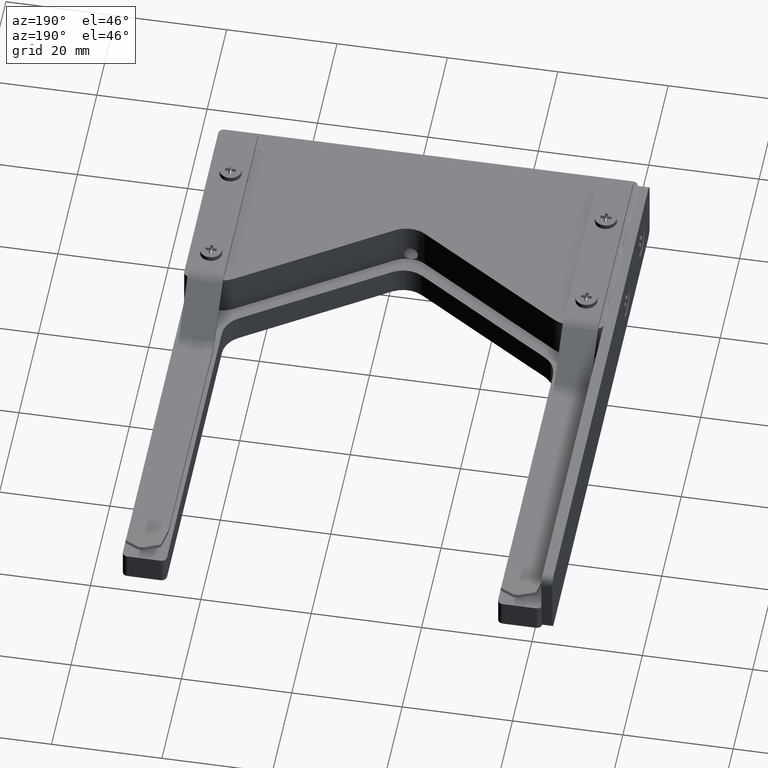
[diagram: clean part render]
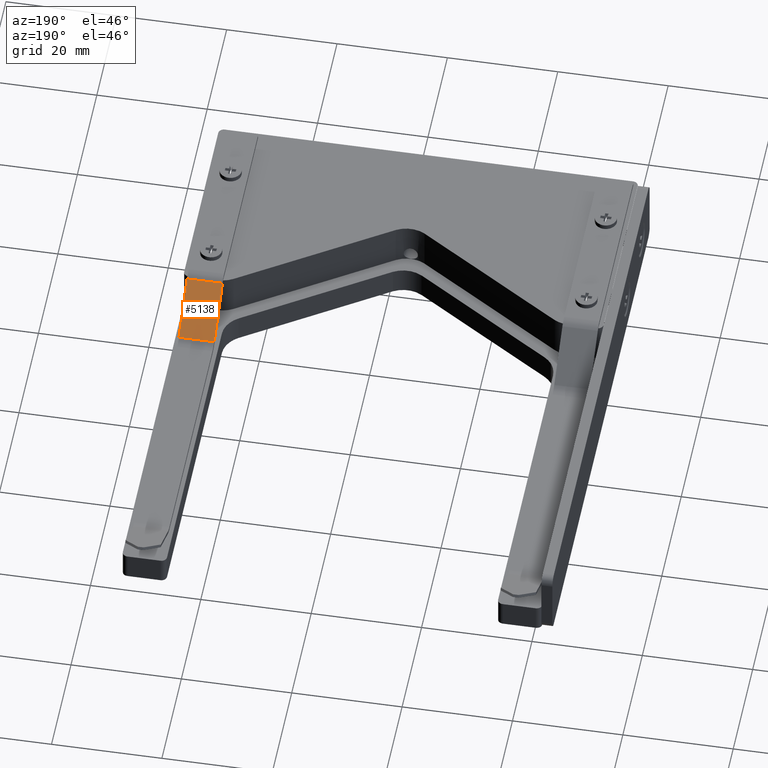
[diagram: same view with one face highlighted and labeled with its STEP entity id]
A machine part, auxiliary view. The second image highlights one B-rep face of the part: STEP entity #5138.
In plain terms, the highlighted planar face has unit normal (0, -0.6101, -0.7923).
Its self-contained STEP definition (entity closure, byte-faithful):
#615 = FACE_OUTER_BOUND ( 'NONE', #5254, .T. ) ;
#997 = VECTOR ( 'NONE', #4563, 1000.000000000000000 ) ;
#999 = LINE ( 'NONE', #4568, #997 ) ;
#1000 = VECTOR ( 'NONE', #4571, 1000.000000000000000 ) ;
#1002 = VECTOR ( 'NONE', #4569, 1000.000000000000000 ) ;
#1003 = LINE ( 'NONE', #4570, #1000 ) ;
#1004 = VECTOR ( 'NONE', #4559, 1000.000000000000000 ) ;
#1006 = LINE ( 'NONE', #4558, #1004 ) ;
#1015 = LINE ( 'NONE', #4564, #1002 ) ;
#2412 = ORIENTED_EDGE ( 'NONE', *, *, #4462, .T. ) ;
#2413 = ORIENTED_EDGE ( 'NONE', *, *, #4456, .T. ) ;
#2414 = ORIENTED_EDGE ( 'NONE', *, *, #4457, .T. ) ;
#2415 = ORIENTED_EDGE ( 'NONE', *, *, #4458, .F. ) ;
#2551 = VERTEX_POINT ( 'NONE', #4765 ) ;
#2554 = VERTEX_POINT ( 'NONE', #4768 ) ;
#2575 = VERTEX_POINT ( 'NONE', #4789 ) ;
#2578 = VERTEX_POINT ( 'NONE', #4792 ) ;
#3742 = CARTESIAN_POINT ( 'NONE',  ( 13.77269647561044000, -4.899219724081159000, 13.19999999999763500 ) ) ;
#3749 = PLANE ( 'NONE',  #4724 ) ;
#3751 = DIRECTION ( 'NONE',  ( 0.0000000000000000000, -0.6100935997982475100, -0.7923293503873346500 ) ) ;
#3752 = DIRECTION ( 'NONE',  ( 0.0000000000000000000, 0.7923293503873346500, -0.6100935997982475100 ) ) ;
#4456 = EDGE_CURVE ( 'NONE', #2578, #2575, #1006, .T. ) ;
#4457 = EDGE_CURVE ( 'NONE', #2554, #2578, #1015, .T. ) ;
#4458 = EDGE_CURVE ( 'NONE', #2554, #2551, #1003, .T. ) ;
#4462 = EDGE_CURVE ( 'NONE', #2575, #2551, #999, .T. ) ;
#4558 = CARTESIAN_POINT ( 'NONE',  ( 7.372696475610439400, -4.899219724081159000, 13.19999999999763500 ) ) ;
#4559 = DIRECTION ( 'NONE',  ( -0.0000000000000000000, -0.7923293503873346500, 0.6100935997982475100 ) ) ;
#4563 = DIRECTION ( 'NONE',  ( 1.000000000000000000, -0.0000000000000000000, -0.0000000000000000000 ) ) ;
#4564 = CARTESIAN_POINT ( 'NONE',  ( 7.372696475610439400, 4.291673848856508900, 6.123011948835632300 ) ) ;
#4568 = CARTESIAN_POINT ( 'NONE',  ( 13.77269647561044000, -4.090113297018832300, 12.57698805115964400 ) ) ;
#4569 = DIRECTION ( 'NONE',  ( -1.000000000000000000, 0.0000000000000000000, 0.0000000000000000000 ) ) ;
#4570 = CARTESIAN_POINT ( 'NONE',  ( 13.77269647561044000, -4.899219724081159000, 13.19999999999763500 ) ) ;
#4571 = DIRECTION ( 'NONE',  ( -0.0000000000000000000, -0.7923293503873346500, 0.6100935997982475100 ) ) ;
#4724 = AXIS2_PLACEMENT_3D ( 'NONE', #3742, #3751, #3752 ) ;
#4765 = CARTESIAN_POINT ( 'NONE',  ( 13.77269647561044000, -4.090113297018832300, 12.57698805115964400 ) ) ;
#4768 = CARTESIAN_POINT ( 'NONE',  ( 13.77269647561044000, 4.291673848856508900, 6.123011948835633200 ) ) ;
#4789 = CARTESIAN_POINT ( 'NONE',  ( 7.372696475610439400, -4.090113297018832300, 12.57698805115964400 ) ) ;
#4792 = CARTESIAN_POINT ( 'NONE',  ( 7.372696475610439400, 4.291673848856508900, 6.123011948835633200 ) ) ;
#5138 = ADVANCED_FACE ( 'NONE', ( #615 ), #3749, .F. ) ;
#5254 = EDGE_LOOP ( 'NONE', ( #2415, #2414, #2413, #2412 ) ) ;